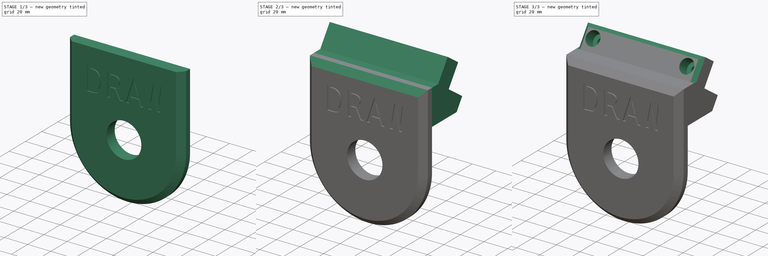
[diagram: build sequence overview — one tinted view per stage of 3, left to right]
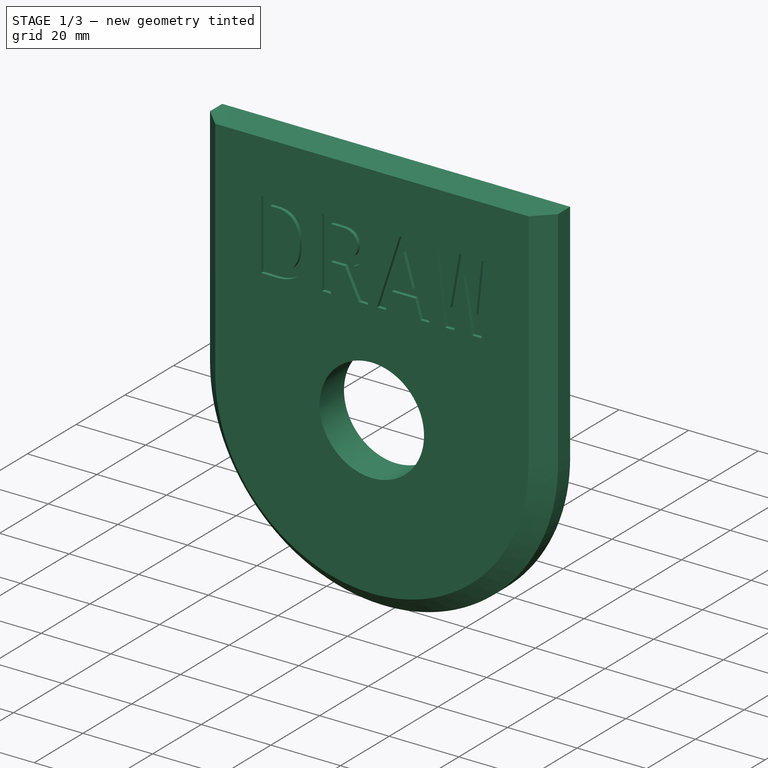
[diagram: stage 1 of 3 — iso view after this stage's code; geometry added in this stage tinted green]
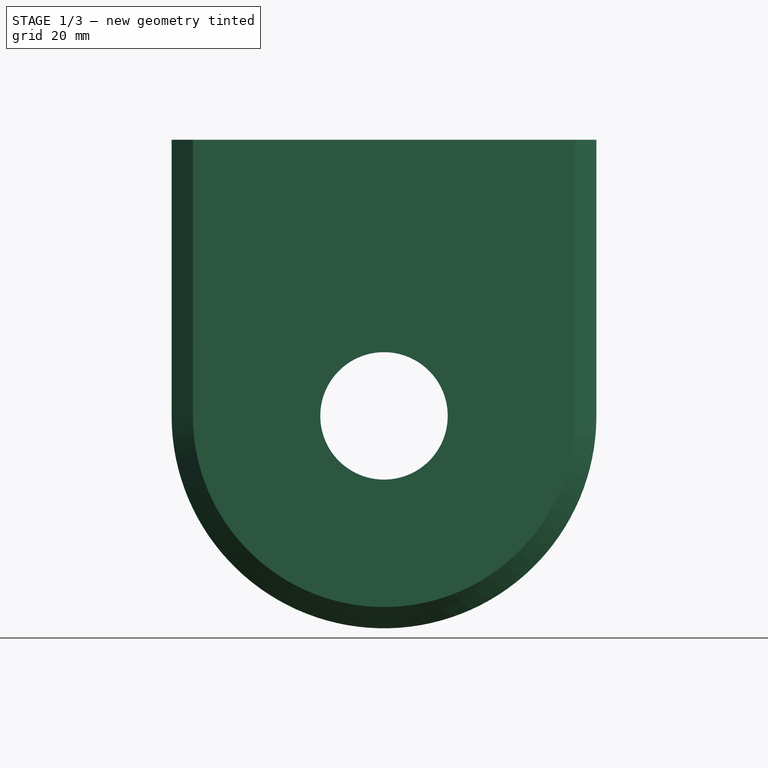
[diagram: stage 1 of 3 — front view after this stage's code; geometry added in this stage tinted green]
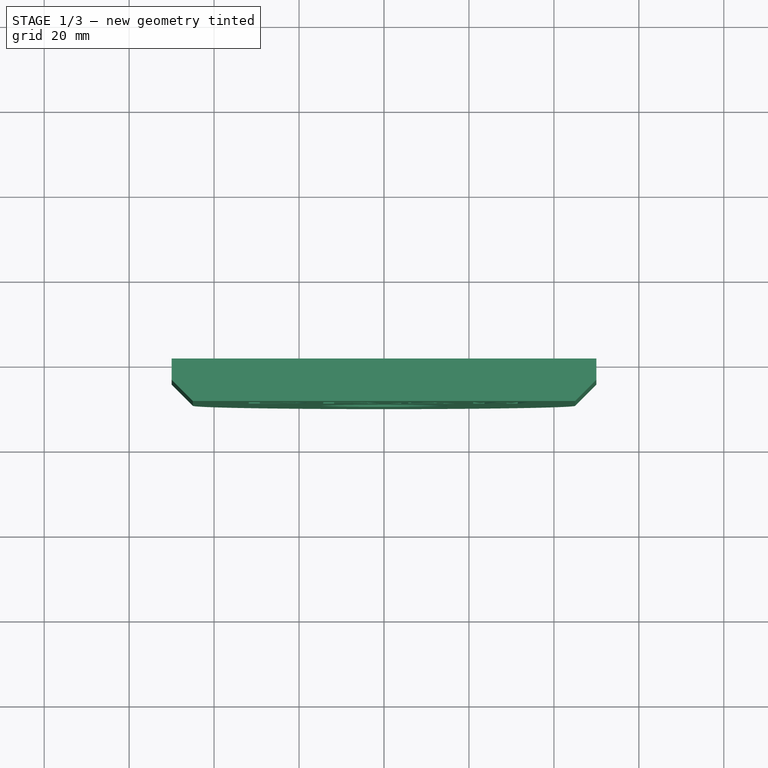
[diagram: stage 1 of 3 — top view after this stage's code; geometry added in this stage tinted green]
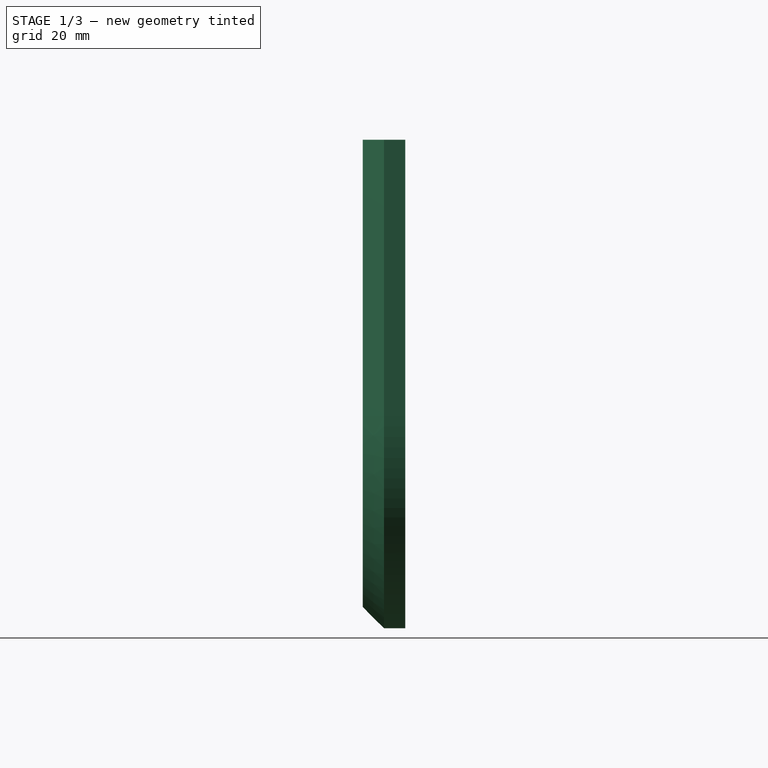
[diagram: stage 1 of 3 — right view after this stage's code; geometry added in this stage tinted green]
FCSTD DOCUMENT  (FreeCAD 0.19R24291 (Git))
Label: button-frame
License: All rights reserved
LicenseURL: http://en.wikipedia.org/wiki/All_rights_reserved
objects: Sketcher::SketchObject×4, PartDesign::Chamfer×3, PartDesign::Pocket×3, PartDesign::Pad×2, Part::Part2DObjectPython×1, PartDesign::Body×1
note: 22 computed .brp shape members not serialized (recipe doc carries the construction recipe); baked Part::Feature solids carry a one-line shape summary decoded from their .brp

FEATURE [Sketcher::SketchObject] Sketch
  FullyConstrained = true
  MapMode = 5
  Placement = pos=(0,0,0) rot=(1,0,0;1.5708rad)
  Support = -> [XZ_Plane]
  sketch-geometry (5):
    g0: Circle CenterX=0 CenterY=0 CenterZ=0 NormalX=0 NormalY=0 NormalZ=1 AngleXU=0 Radius=15
    g1: ArcOfCircle CenterX=0 CenterY=0 CenterZ=0 NormalX=0 NormalY=0 NormalZ=1 AngleXU=0 Radius=50 StartAngle=3.14159 EndAngle=6.28319
    g2: LineSegment StartX=-50 StartY=6.1e-15 StartZ=0 EndX=-50 EndY=65 EndZ=0
    g3: LineSegment StartX=-50 StartY=65 StartZ=0 EndX=50 EndY=65 EndZ=0
    g4: LineSegment StartX=50 StartY=65 StartZ=0 EndX=50 EndY=0 EndZ=0
  constraints (13):
    c: Coincident(g0,g-1)
    c: Diameter(g0) = 30
    c: Coincident(g1,g0)
    c: PointOnObject(g1,g-1)
    c: PointOnObject(g1,g-1)
    c: Tangent(g1,g2) = 1.5708
    c: Coincident(g2,g3)
    c: Horizontal(g3)
    c: Coincident(g3,g4)
    c: Coincident(g4,g1)
    c: Vertical(g4)
    c: Diameter(g1) = 100
    c: DistanceY(g0,g2) = 65
FEATURE [PartDesign::Pad] Pad
  Direction = (1,1,1)
  Length = 10
  Length2 = 100
  Placement = pos=(0,0,0) rot=(1,0,0;1.5708rad)
  Profile = -> Sketch
  Type = 0
FEATURE [PartDesign::Chamfer] Chamfer
  Angle = 45
  Base = -> Pad [Edge4]
  BaseFeature = -> Pad
  ChamferType = 0
  FlipDirection = false
  Placement = pos=(0,0,0) rot=(1,0,0;1.5708rad)
  Size = 5
  Size2 = 1
  SupportTransform = false
FEATURE [Part::Part2DObjectPython] ShapeString  # Draft 2D object (typed FeaturePython)
  AttachmentOffset = pos=(-34,29.72,0) rot=(0,0,1;0rad)
  FontFile = <userpath>/feeder/lib/fonts/RobotoMono-VariableFont_weight.ttf
  MapMode = 5
  Placement = pos=(-34,-10,29.72) rot=(1,0,0;1.5708rad)
  Size = 25
  String = DRAW
  Support = -> [Chamfer]
  Tracking = 0
FEATURE [PartDesign::Pocket] Pocket
  BaseFeature = -> Chamfer
  Length = 1
  Length2 = 100
  Placement = pos=(0,0,0) rot=(1,0,0;1.5708rad)
  Profile = -> ShapeString
  Type = 0
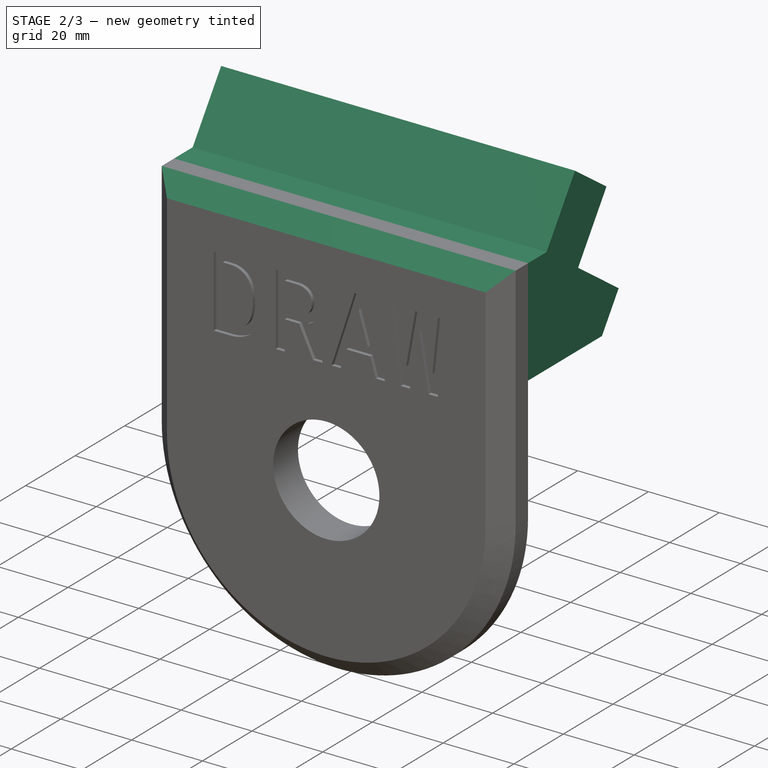
[diagram: stage 2 of 3 — iso view after this stage's code; geometry added in this stage tinted green]
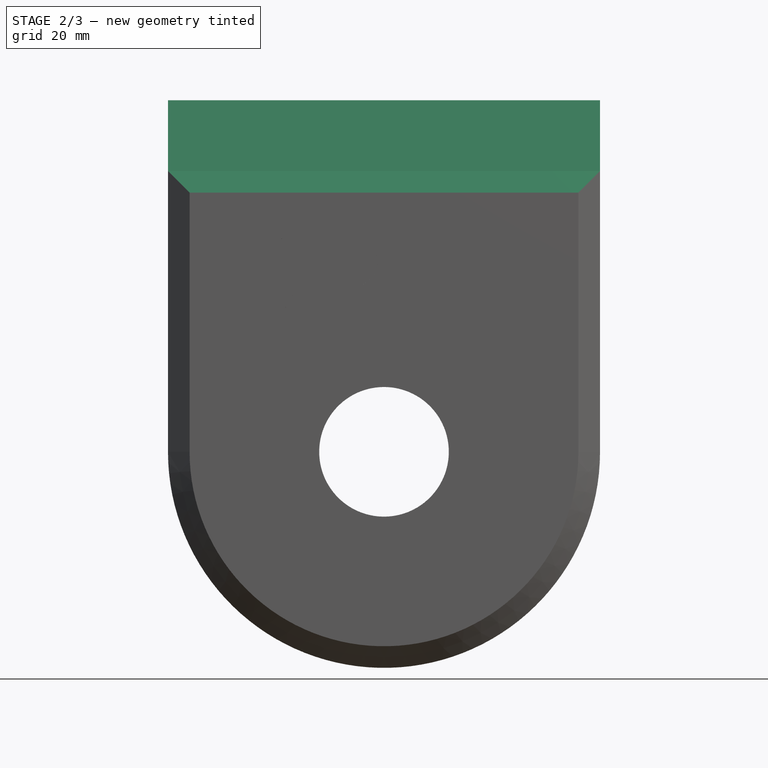
[diagram: stage 2 of 3 — front view after this stage's code; geometry added in this stage tinted green]
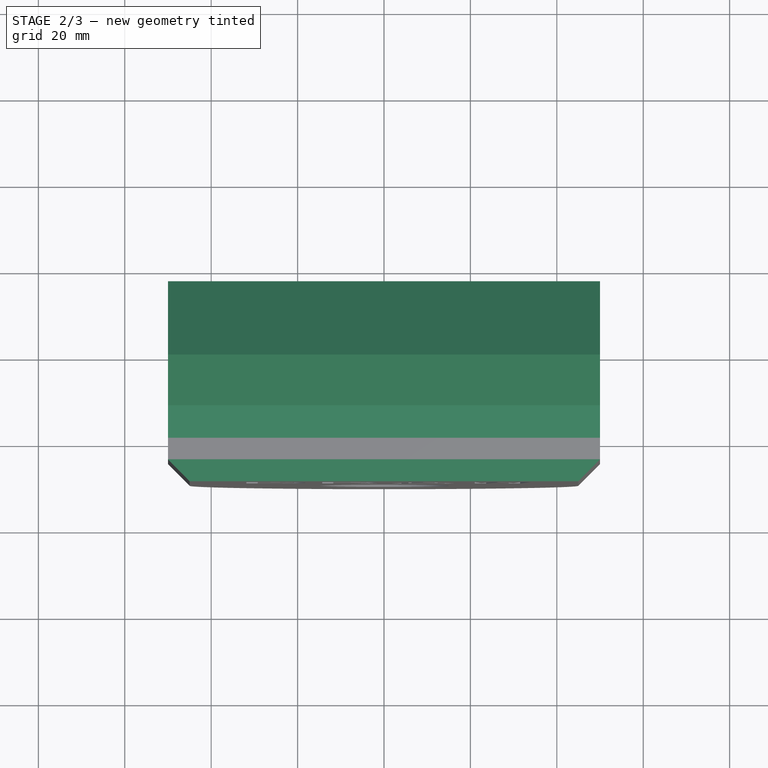
[diagram: stage 2 of 3 — top view after this stage's code; geometry added in this stage tinted green]
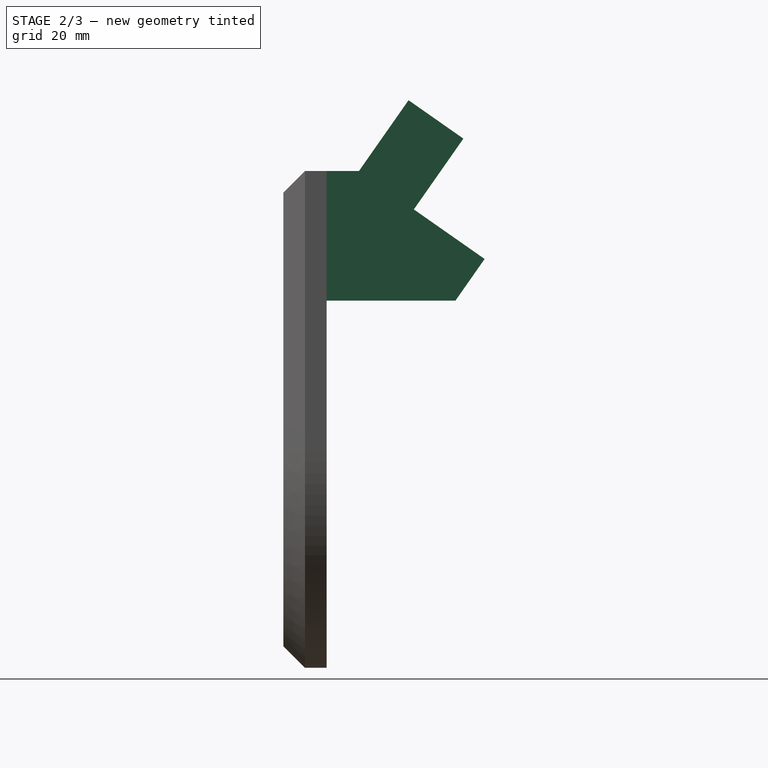
[diagram: stage 2 of 3 — right view after this stage's code; geometry added in this stage tinted green]
FEATURE [Sketcher::SketchObject] Sketch001
  ExternalGeometry = -> [Pocket]
  FullyConstrained = false
  MapMode = 5
  Placement = pos=(0,0,0) rot=(0.57735,0.57735,0.57735;2.0944rad)
  Support = -> [YZ_Plane]
  sketch-geometry (9):
    g0: LineSegment StartX=31.6684 StartY=72.4926 StartZ=0 EndX=20.1969 EndY=56.1096 EndZ=0
    g1: LineSegment StartX=20.1969 StartY=56.1096 StartZ=0 EndX=36.5799 EndY=44.638 EndZ=0
    g2: LineSegment StartX=36.5799 StartY=44.638 StartZ=0 EndX=29.8313 EndY=35 EndZ=0
    g3: LineSegment StartX=29.8313 StartY=35 StartZ=0 EndX=7.1e-15 EndY=35 EndZ=0
    g4: LineSegment StartX=7.1e-15 StartY=35 StartZ=0 EndX=1.44e-14 EndY=65 EndZ=0
    g5: LineSegment StartX=1.44e-14 StartY=65 StartZ=0 EndX=-10 EndY=65 EndZ=0
    g6: LineSegment StartX=1.44e-14 StartY=65 StartZ=0 EndX=7.5 EndY=65 EndZ=0
    g7: LineSegment StartX=7.5 StartY=65 StartZ=0 EndX=18.9715 EndY=81.383 EndZ=0
    g8: LineSegment StartX=18.9715 StartY=81.383 StartZ=0 EndX=31.6684 EndY=72.4926 EndZ=0
  constraints (24):
    c: Coincident(g0,g1)
    c: Coincident(g1,g2)
    c: Coincident(g2,g3)
    c: PointOnObject(g3,g-4)
    c: Horizontal(g3)
    c: Coincident(g3,g4)
    c: Coincident(g4,g-4)
    c: Coincident(g4,g5)
    c: Perpendicular(g0,g1)
    c: Perpendicular(g1,g2)
    c: Distance(g0) = 20
    c: Distance(g1) = 20
    c: Coincident(g4,g6)
    c: Horizontal(g6)
    c: Coincident(g6,g7)
    c: PointOnObject(g6,g1)
    c: Angle(g2,g3) = 2.18166
    c: Distance(g6) = 7.5
    c: Coincident(g8,g7)
    c: Coincident(g8,g0)
    c: Distance(g8) = 15.5
    c: Perpendicular(g8,g7)
    c: Perpendicular(g0,g8)
    c: Distance(g4) = 30
FEATURE [PartDesign::Pad] Pad001
  BaseFeature = -> Pocket
  Direction = (1,1,1)
  Length = 50
  Length2 = 50
  Placement = pos=(0,0,0) rot=(1,0,0;1.5708rad)
  Profile = -> Sketch001
  Type = 4
FEATURE [PartDesign::Chamfer] Chamfer001
  Angle = 45
  Base = -> Pad001 [Edge28]
  BaseFeature = -> Pad001
  ChamferType = 0
  FlipDirection = false
  Placement = pos=(0,0,0) rot=(1,0,0;1.5708rad)
  Size = 5
  Size2 = 5
  SupportTransform = false
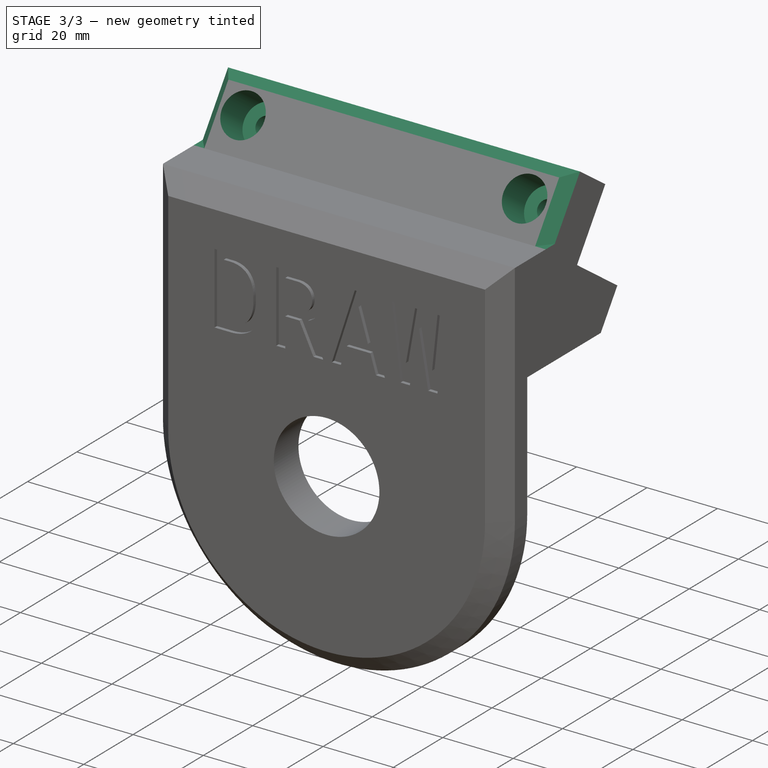
[diagram: stage 3 of 3 — iso view after this stage's code; geometry added in this stage tinted green]
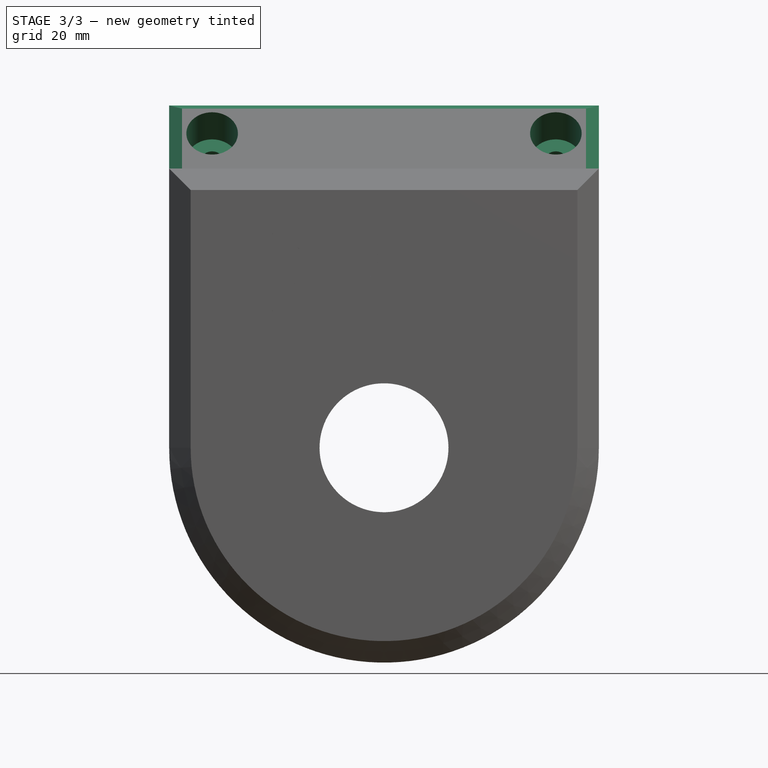
[diagram: stage 3 of 3 — front view after this stage's code; geometry added in this stage tinted green]
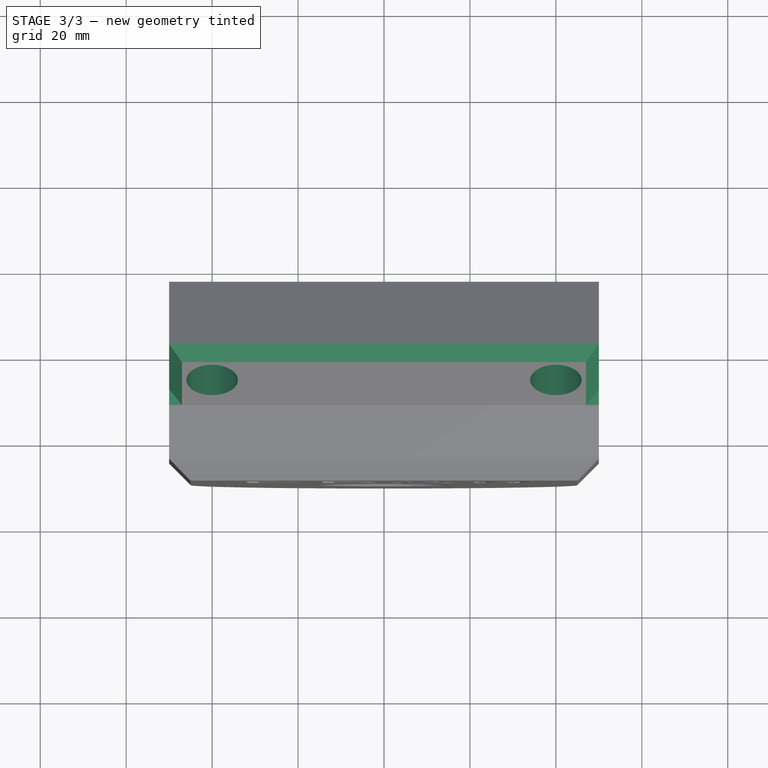
[diagram: stage 3 of 3 — top view after this stage's code; geometry added in this stage tinted green]
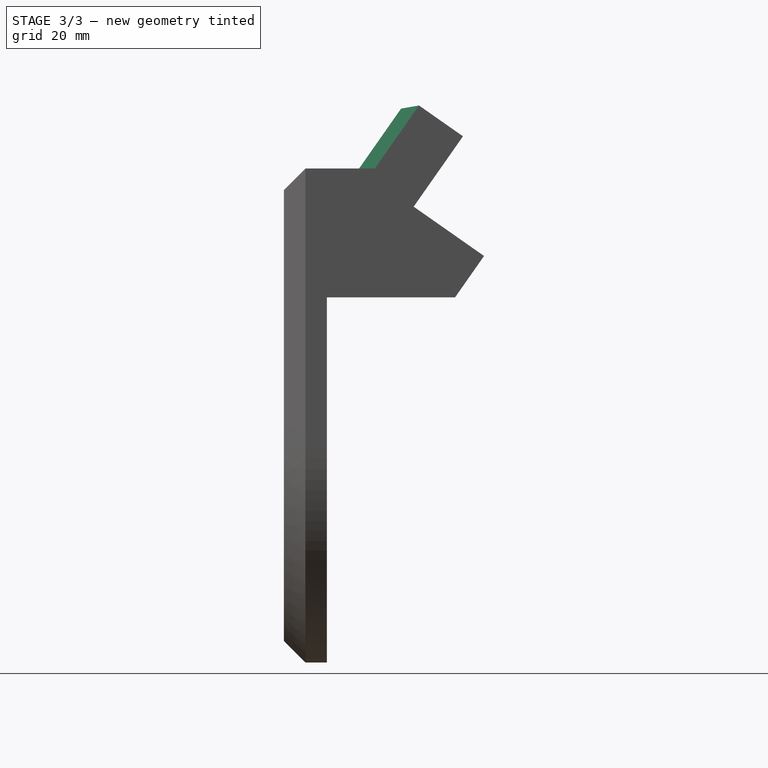
[diagram: stage 3 of 3 — right view after this stage's code; geometry added in this stage tinted green]
FEATURE [Sketcher::SketchObject] Sketch002
  FullyConstrained = true
  MapMode = 5
  Placement = pos=(-1.06e-14,-25.5074,17.8605) rot=(1,0,0;0.959931rad)
  Support = -> [Chamfer001]
  sketch-geometry (3):
    g0: Circle CenterX=-40 CenterY=67.5 CenterZ=0 NormalX=0 NormalY=0 NormalZ=1 AngleXU=0 Radius=2.6
    g1: Circle CenterX=40 CenterY=67.5 CenterZ=0 NormalX=0 NormalY=0 NormalZ=1 AngleXU=0 Radius=2.6
    g2: LineSegment StartX=-40 StartY=67.5 StartZ=0 EndX=40 EndY=67.5 EndZ=0
  constraints (8):
    c: Diameter(g1) = 5.2
    c: Diameter(g0) = 5.2
    c: Coincident(g2,g0)
    c: Coincident(g2,g1)
    c: Horizontal(g2)
    c: Distance(g2) = 80
    c: DistanceX(g0,g-1) = 40
    c: DistanceY(g-1,g0) = 67.5
FEATURE [PartDesign::Pocket] Pocket001
  BaseFeature = -> Chamfer001
  Length = 20
  Length2 = 100
  Placement = pos=(0,0,0) rot=(1,0,0;1.5708rad)
  Profile = -> Sketch002
  Type = 0
FEATURE [Sketcher::SketchObject] Sketch003
  ExternalGeometry = -> [Pocket001]
  FullyConstrained = false
  MapMode = 5
  Placement = pos=(-1.06e-14,-25.5074,17.8605) rot=(1,0,0;0.959931rad)
  Support = -> [Pocket001]
  sketch-geometry (2):
    g0: Circle CenterX=-40 CenterY=67.5091 CenterZ=0 NormalX=0 NormalY=0 NormalZ=1 AngleXU=0 Radius=6
    g1: Circle CenterX=40 CenterY=67.5091 CenterZ=0 NormalX=0 NormalY=0 NormalZ=1 AngleXU=0 Radius=6
  constraints (2):
    c: Diameter(g1) = 12
    c: Diameter(g0) = 12
FEATURE [PartDesign::Pocket] Pocket002
  BaseFeature = -> Pocket001
  Length = 11
  Length2 = 100
  Placement = pos=(0,0,0) rot=(1,0,0;1.5708rad)
  Profile = -> Sketch003
  Type = 0
FEATURE [PartDesign::Chamfer] Chamfer002
  Angle = 45
  Base = -> Pocket002 [Edge258,Edge256,Edge211]
  BaseFeature = -> Pocket002
  ChamferType = 0
  FlipDirection = false
  Placement = pos=(0,0,0) rot=(1,0,0;1.5708rad)
  Size = 3
  Size2 = 1
  SupportTransform = false
FEATURE [PartDesign::Body] Body
  Group = -> [Sketch,Pad,Chamfer,ShapeString,Pocket,Sketch001,Pad001,Chamfer001,Sketch002,Pocket001,Sketch003,Pocket002,Chamfer002]
  Origin = -> Origin
  Tip = -> Chamfer002
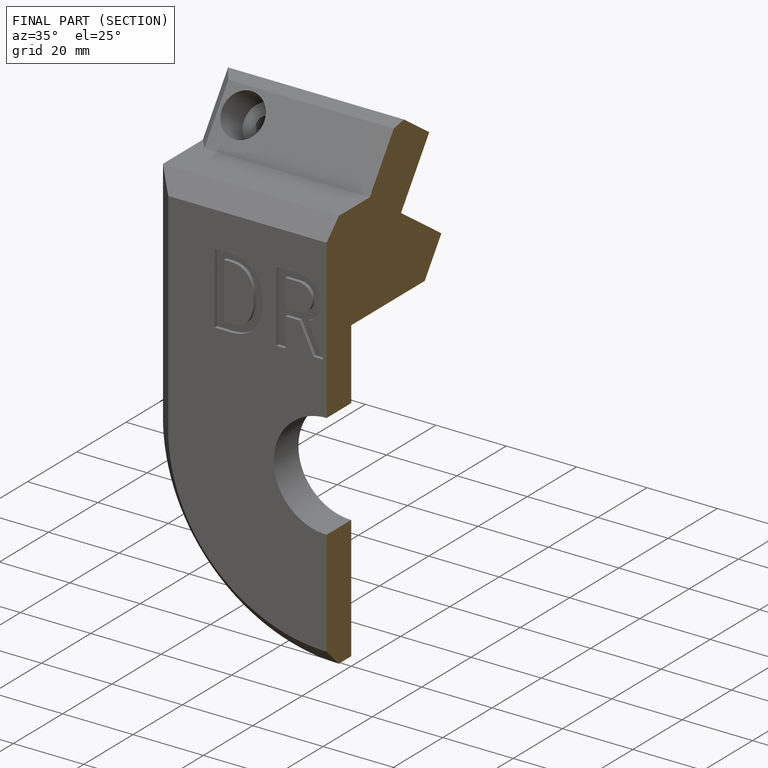
[diagram: finished part — half-section view (interior)]
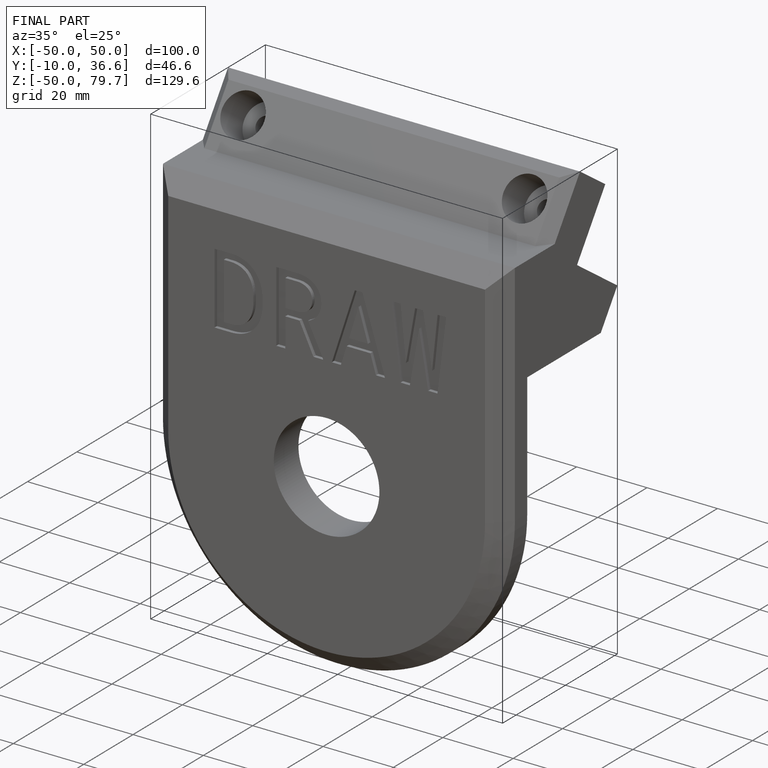
[diagram: finished part — iso view with bounding-box wireframe]
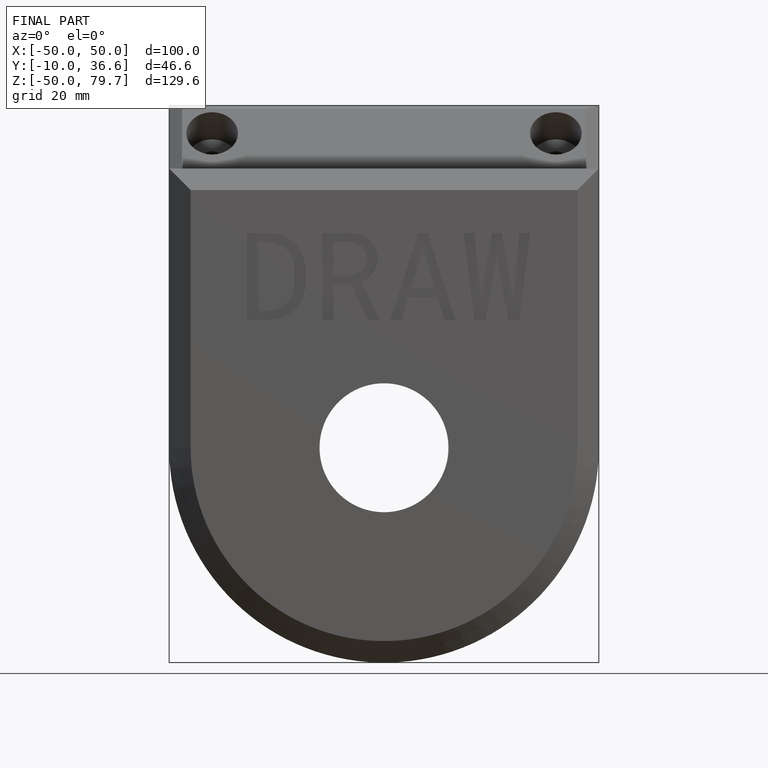
[diagram: finished part — front view with bounding-box wireframe]
